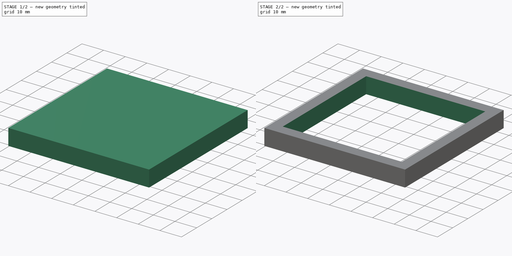
[diagram: build sequence overview — one tinted view per stage of 2, left to right]
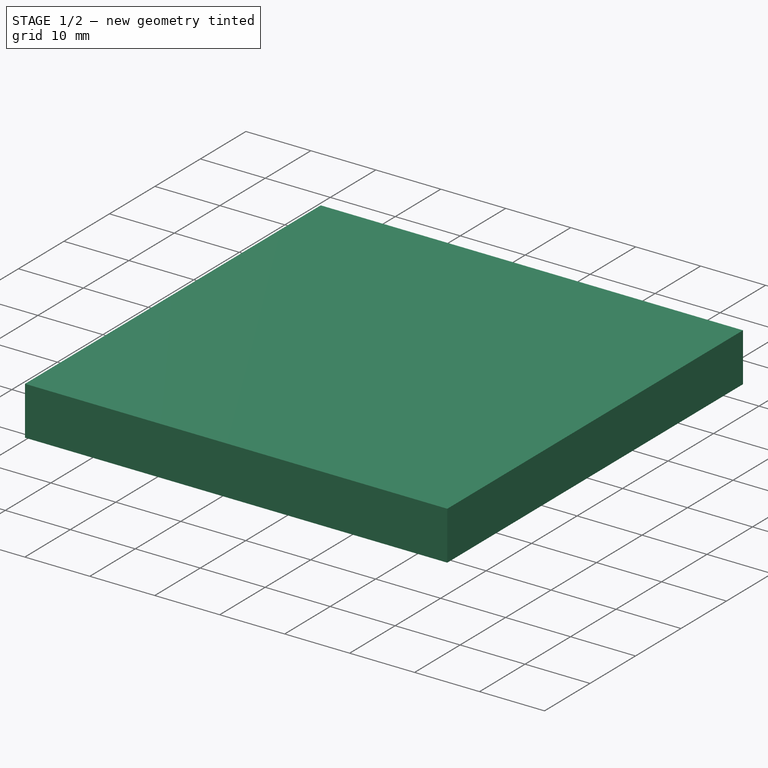
[diagram: stage 1 of 2 — iso view after this stage's code; geometry added in this stage tinted green]
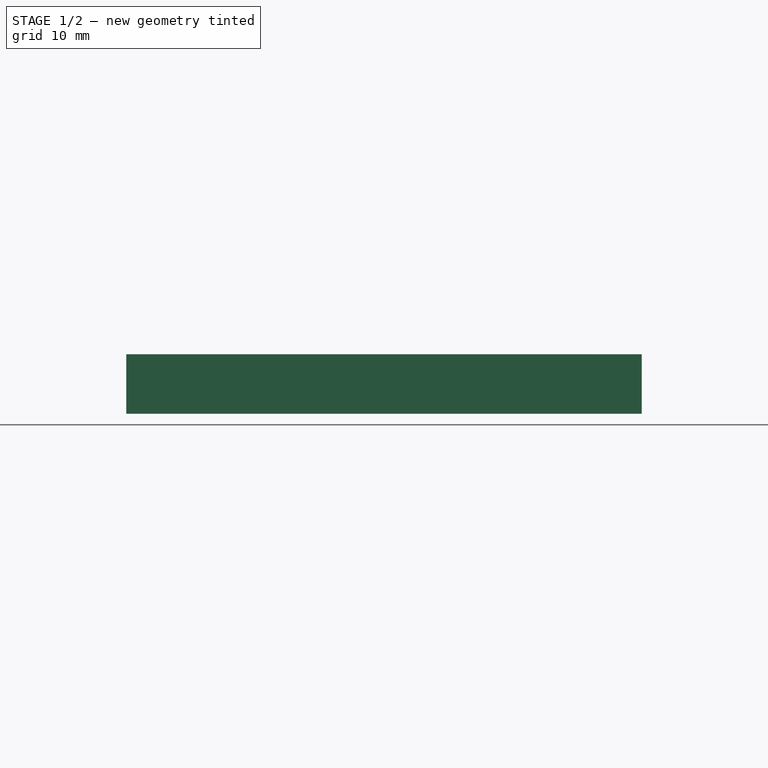
[diagram: stage 1 of 2 — front view after this stage's code; geometry added in this stage tinted green]
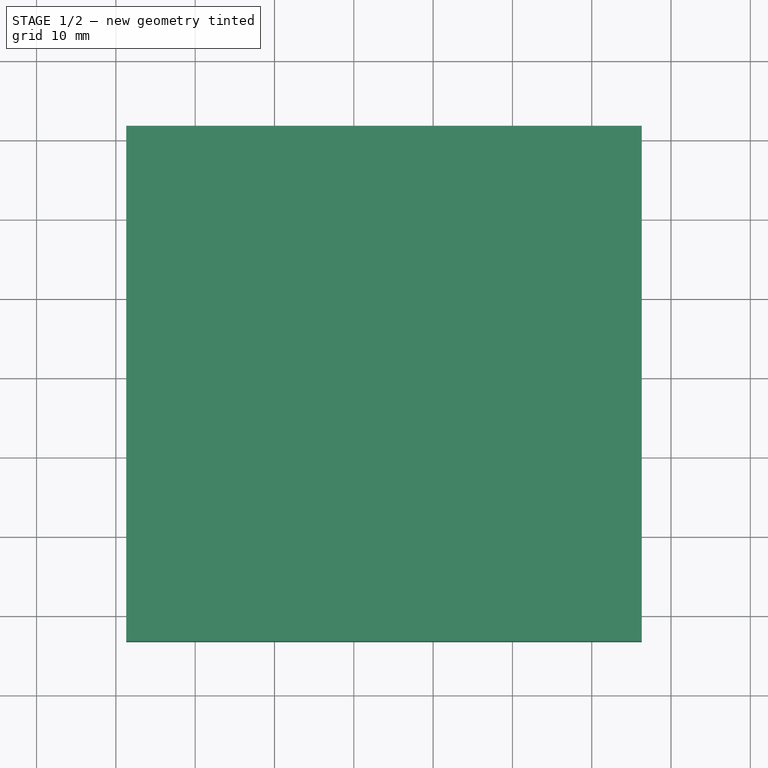
[diagram: stage 1 of 2 — top view after this stage's code; geometry added in this stage tinted green]
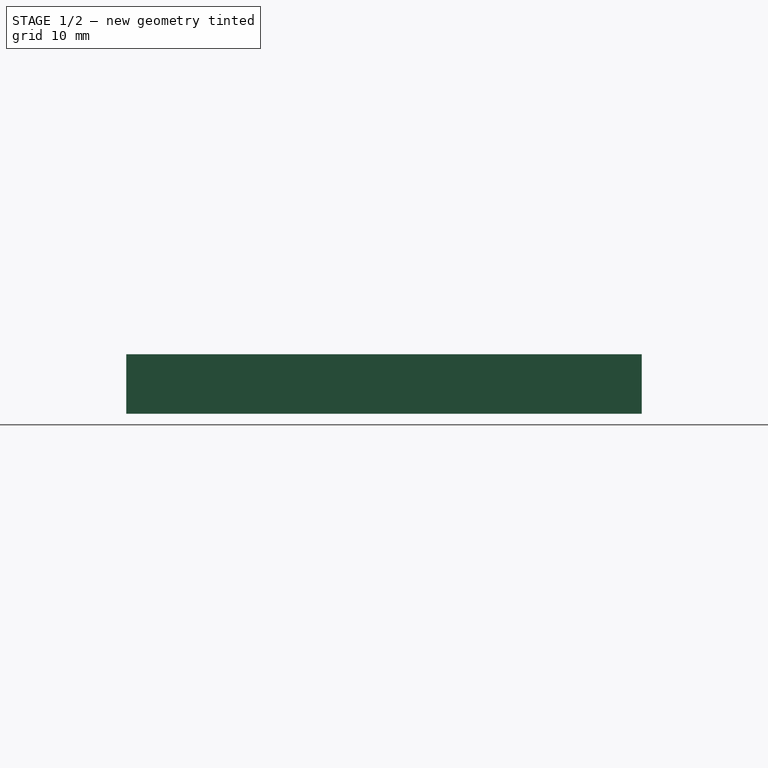
[diagram: stage 1 of 2 — right view after this stage's code; geometry added in this stage tinted green]
FCSTD DOCUMENT  (FreeCAD 0.17R10002 (Git))
Label: mold_1
License: All rights reserved
LicenseURL: http://en.wikipedia.org/wiki/All_rights_reserved
objects: Sketcher::SketchObject×2, PartDesign::Pad×1, PartDesign::Pocket×1, PartDesign::Body×1
note: 7 computed .brp shape members not serialized (recipe doc carries the construction recipe); baked Part::Feature solids carry a one-line shape summary decoded from their .brp

FEATURE [Sketcher::SketchObject] Sketch
  MapMode = 5
  Support = -> [XY_Plane]
  sketch-geometry (4):
    g0: LineSegment StartX=-38.693 StartY=21.7491 StartZ=0 EndX=26.307 EndY=21.7491 EndZ=0
    g1: LineSegment StartX=26.307 StartY=21.7491 StartZ=0 EndX=26.307 EndY=-43.2509 EndZ=0
    g2: LineSegment StartX=26.307 StartY=-43.2509 StartZ=0 EndX=-38.693 EndY=-43.2509 EndZ=0
    g3: LineSegment StartX=-38.693 StartY=-43.2509 StartZ=0 EndX=-38.693 EndY=21.7491 EndZ=0
  constraints (10):
    c: Coincident(g0,g1)
    c: Coincident(g1,g2)
    c: Coincident(g2,g3)
    c: Coincident(g3,g0)
    c: Horizontal(g0)
    c: Horizontal(g2)
    c: Vertical(g1)
    c: Vertical(g3)
    c: Distance(g1) = 65
    c: Distance(g0) = 65
FEATURE [PartDesign::Pad] Pad
  Length = 7.5
  Length2 = 100
  Midplane = true
  Profile = -> Sketch
  Type = 0
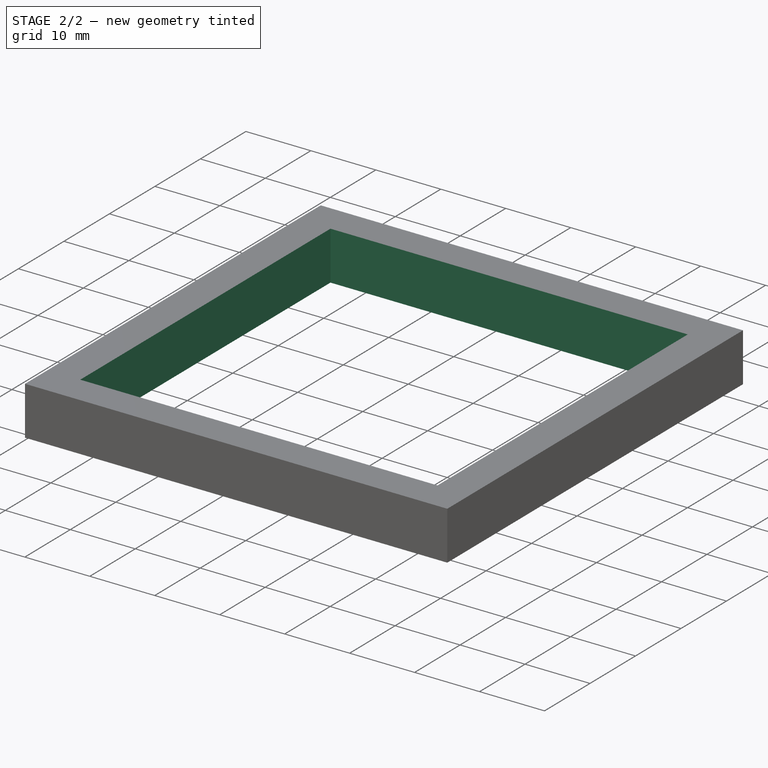
[diagram: stage 2 of 2 — iso view after this stage's code; geometry added in this stage tinted green]
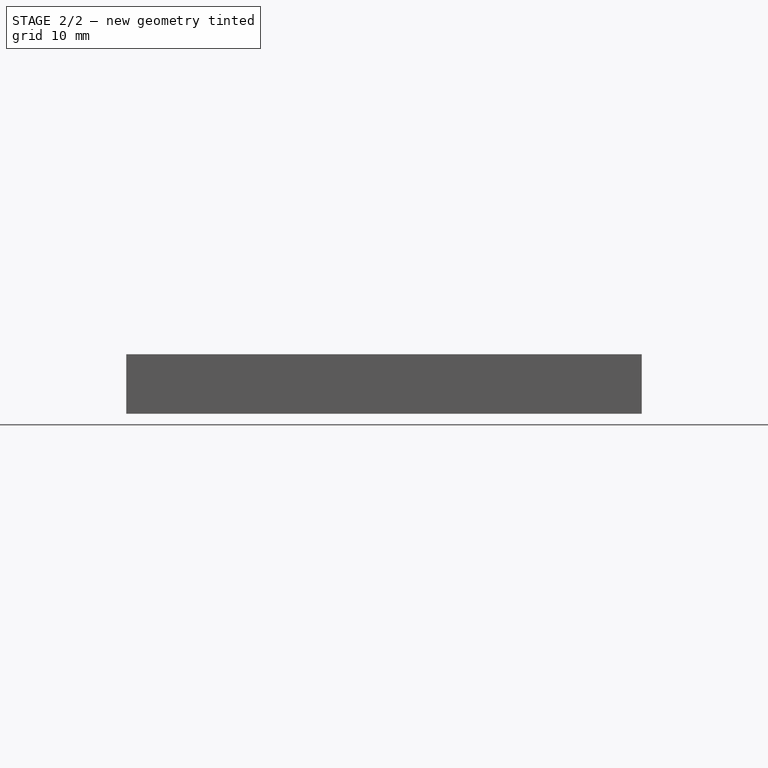
[diagram: stage 2 of 2 — front view after this stage's code; geometry added in this stage tinted green]
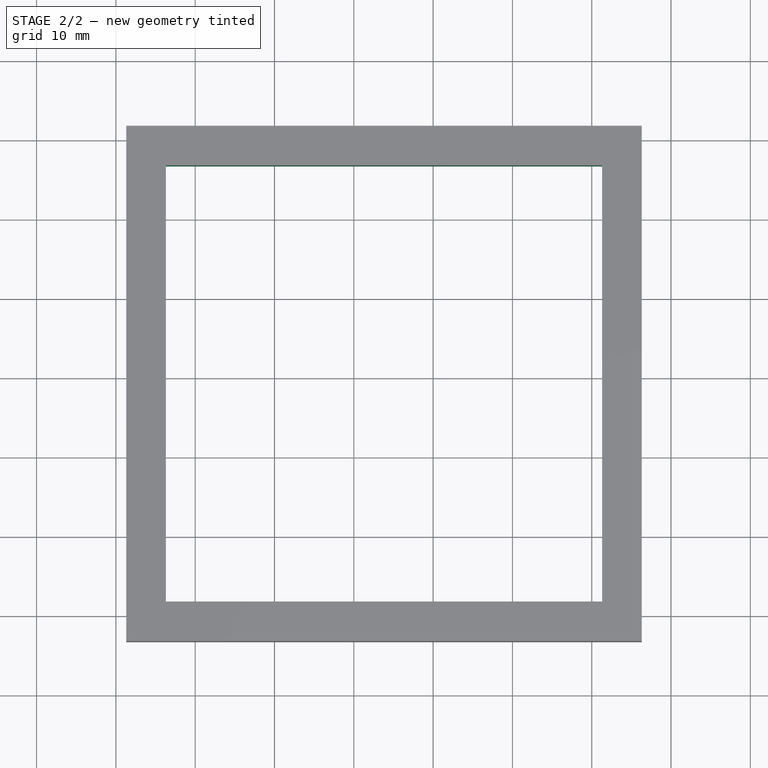
[diagram: stage 2 of 2 — top view after this stage's code; geometry added in this stage tinted green]
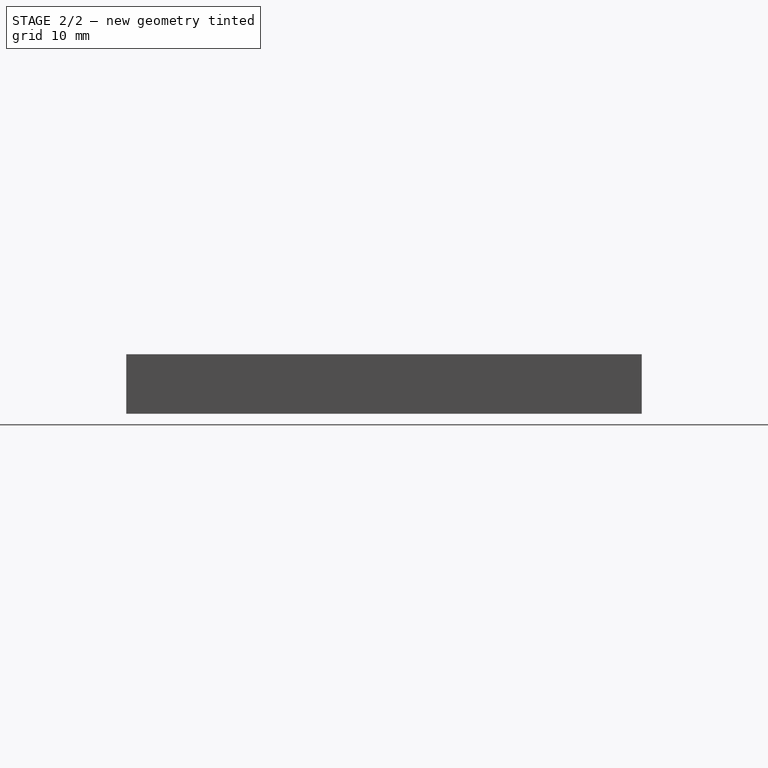
[diagram: stage 2 of 2 — right view after this stage's code; geometry added in this stage tinted green]
FEATURE [Sketcher::SketchObject] Sketch001
  ExternalGeometry = -> [Pad]
  MapMode = 5
  Placement = pos=(0,0,-3.75) rot=(1,0,0;3.14159rad)
  Support = -> [Pad]
  sketch-geometry (4):
    g0: LineSegment StartX=-33.693 StartY=38.2509 StartZ=0 EndX=21.307 EndY=38.2509 EndZ=0
    g1: LineSegment StartX=21.307 StartY=38.2509 StartZ=0 EndX=21.307 EndY=-16.7491 EndZ=0
    g2: LineSegment StartX=21.307 StartY=-16.7491 StartZ=0 EndX=-33.693 EndY=-16.7491 EndZ=0
    g3: LineSegment StartX=-33.693 StartY=-16.7491 StartZ=0 EndX=-33.693 EndY=38.2509 EndZ=0
  constraints (12):
    c: Coincident(g0,g1)
    c: Coincident(g1,g2)
    c: Coincident(g2,g3)
    c: Coincident(g3,g0)
    c: Horizontal(g0)
    c: Horizontal(g2)
    c: Vertical(g1)
    c: Vertical(g3)
    c: Distance(g-6,g0) = 5
    c: Distance(g-6,g1) = 5
    c: Distance(g-4,g3) = 5
    c: Distance(g-5,g2) = 5
FEATURE [PartDesign::Pocket] Pocket
  BaseFeature = -> Pad
  Length = 5
  Profile = -> Sketch001
  Type = 1
FEATURE [PartDesign::Body] Body
  Group = -> [Sketch,Pad,Sketch001,Pocket]
  Origin = -> BodyOrigin
  Tip = -> Pocket
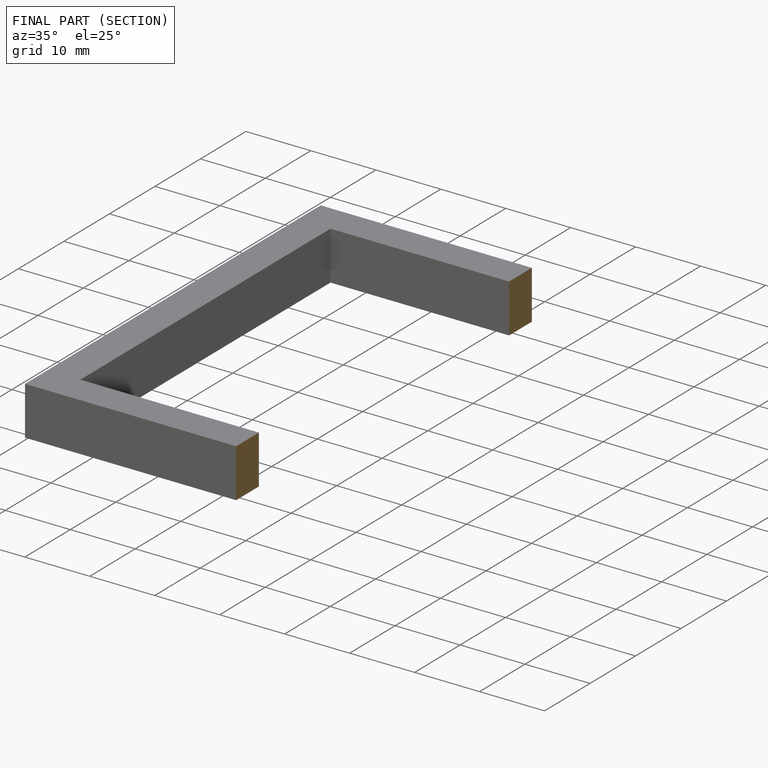
[diagram: finished part — half-section view (interior)]
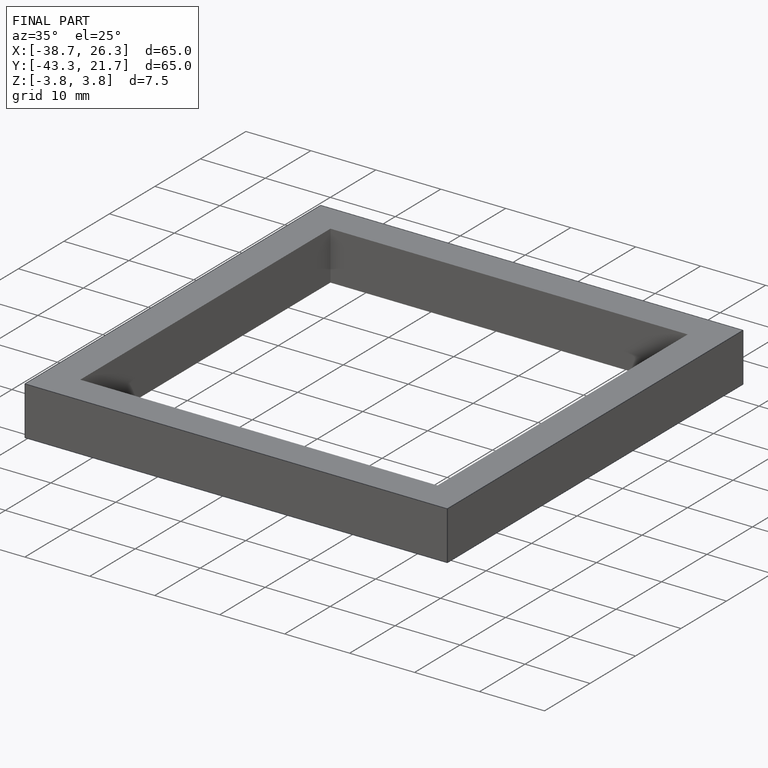
[diagram: finished part — iso view with bounding-box wireframe]
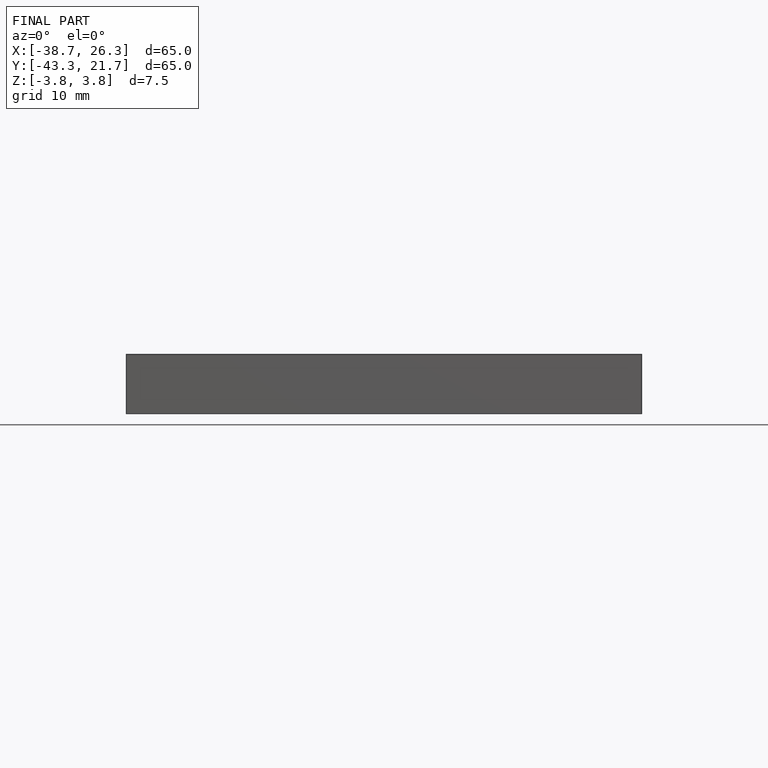
[diagram: finished part — front view with bounding-box wireframe]
